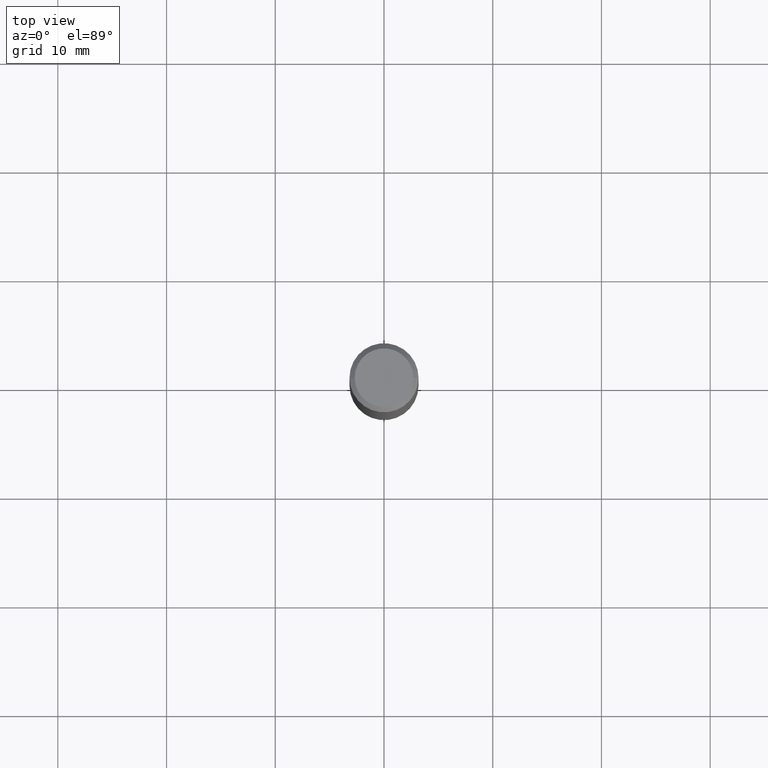
[diagram: clean part render]
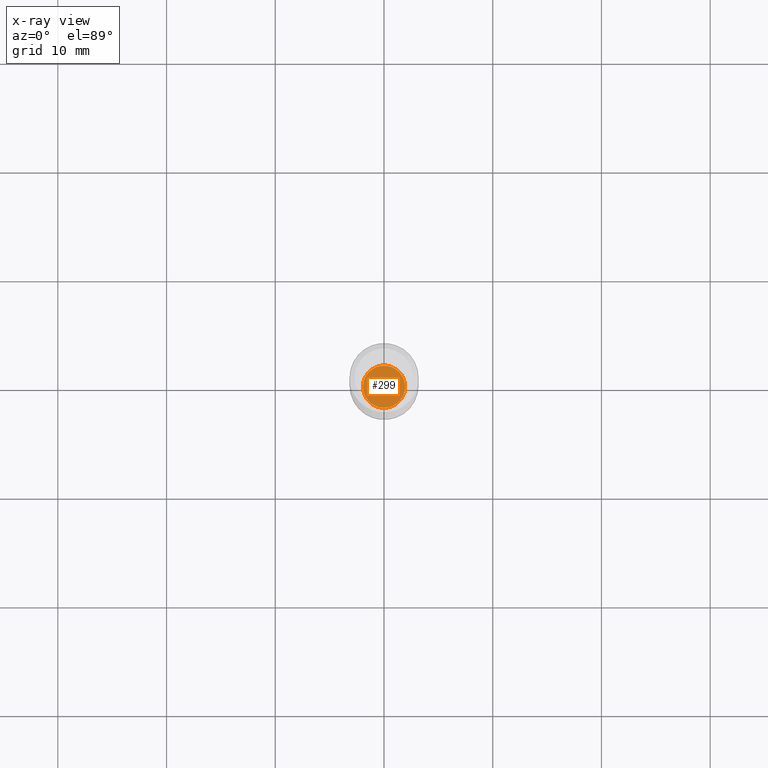
[diagram: x-ray — body ghosted, one internal face saturated and labeled with its STEP entity id]
A machine part, top view, then the same camera in x-ray: the body is ghosted and one INTERNAL B-rep face — a face not visible from any outside direction — is saturated and labeled: STEP entity #299.
In plain terms, the highlighted planar face has unit normal (-0, 0, 1).
Its self-contained STEP definition (entity closure, byte-faithful):
#43 = CARTESIAN_POINT ( 'NONE',  ( -0.07649999999999998468, -6.101566049126761138E-15, -1.903999999999999915 ) ) ;
#50 = CIRCLE ( 'NONE', #321, 0.07649999999999998468 ) ;
#73 = DIRECTION ( 'NONE',  ( -2.445468806185136597E-29, 3.491481338843145583E-15, 1.000000000000000000 ) ) ;
#95 = CIRCLE ( 'NONE', #210, 0.07649999999999998468 ) ;
#100 = VERTEX_POINT ( 'NONE', #43 ) ;
#114 = VERTEX_POINT ( 'NONE', #276 ) ;
#135 = EDGE_CURVE ( 'NONE', #100, #114, #95, .T. ) ;
#147 = ORIENTED_EDGE ( 'NONE', *, *, #135, .F. ) ;
#174 = CARTESIAN_POINT ( 'NONE',  ( 4.656172606976500152E-29, -6.647780469157349069E-15, -1.903999999999999915 ) ) ;
#181 = PLANE ( 'NONE',  #407 ) ;
#193 = ORIENTED_EDGE ( 'NONE', *, *, #417, .F. ) ;
#210 = AXIS2_PLACEMENT_3D ( 'NONE', #462, #471, #420 ) ;
#250 = FACE_OUTER_BOUND ( 'NONE', #397, .T. ) ;
#263 = CARTESIAN_POINT ( 'NONE',  ( 4.656172606976500152E-29, -6.647780469157349069E-15, -1.903999999999999915 ) ) ;
#276 = CARTESIAN_POINT ( 'NONE',  ( 0.07649999999999998468, -7.181977114000348094E-15, -1.903999999999999915 ) ) ;
#299 = ADVANCED_FACE ( 'NONE', ( #250 ), #181, .F. ) ;
#321 = AXIS2_PLACEMENT_3D ( 'NONE', #263, #73, #490 ) ;
#397 = EDGE_LOOP ( 'NONE', ( #193, #147 ) ) ;
#407 = AXIS2_PLACEMENT_3D ( 'NONE', #174, #434, #436 ) ;
#417 = EDGE_CURVE ( 'NONE', #114, #100, #50, .T. ) ;
#420 = DIRECTION ( 'NONE',  ( 1.000000000000000000, -6.982962677686264344E-15, 0.000000000000000000 ) ) ;
#434 = DIRECTION ( 'NONE',  ( -2.438088387897960049E-29, 3.491481338843145188E-15, 1.000000000000000000 ) ) ;
#436 = DIRECTION ( 'NONE',  ( 1.000000000000000000, -6.982962677686265922E-15, 4.876176775795935793E-29 ) ) ;
#462 = CARTESIAN_POINT ( 'NONE',  ( 4.656172606976500152E-29, -6.647780469157349069E-15, -1.903999999999999915 ) ) ;
#471 = DIRECTION ( 'NONE',  ( -2.445468806185136597E-29, 3.491481338843145583E-15, 1.000000000000000000 ) ) ;
#490 = DIRECTION ( 'NONE',  ( 1.000000000000000000, -6.982962677686264344E-15, 0.000000000000000000 ) ) ;